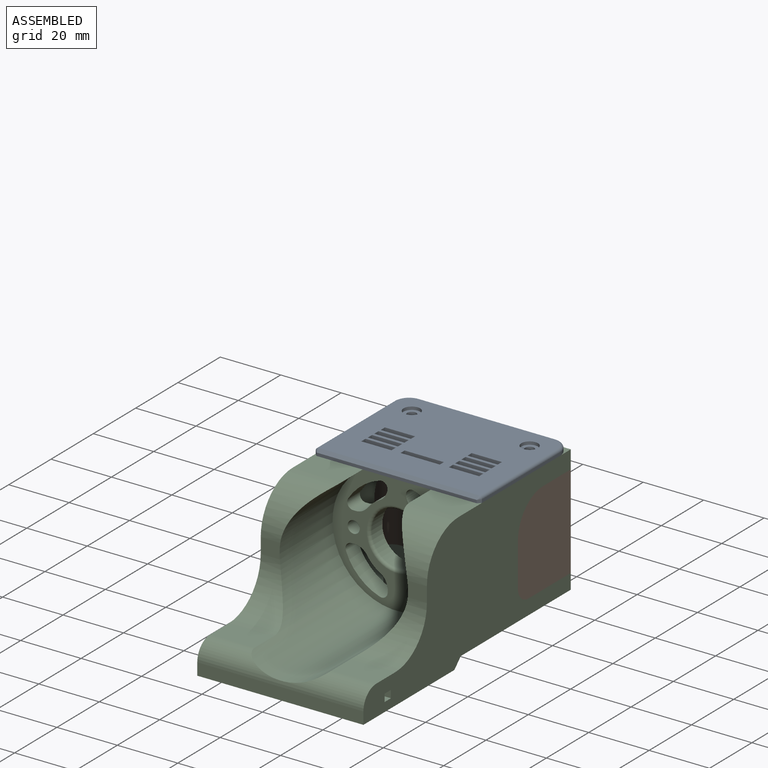
[diagram: assembled view]
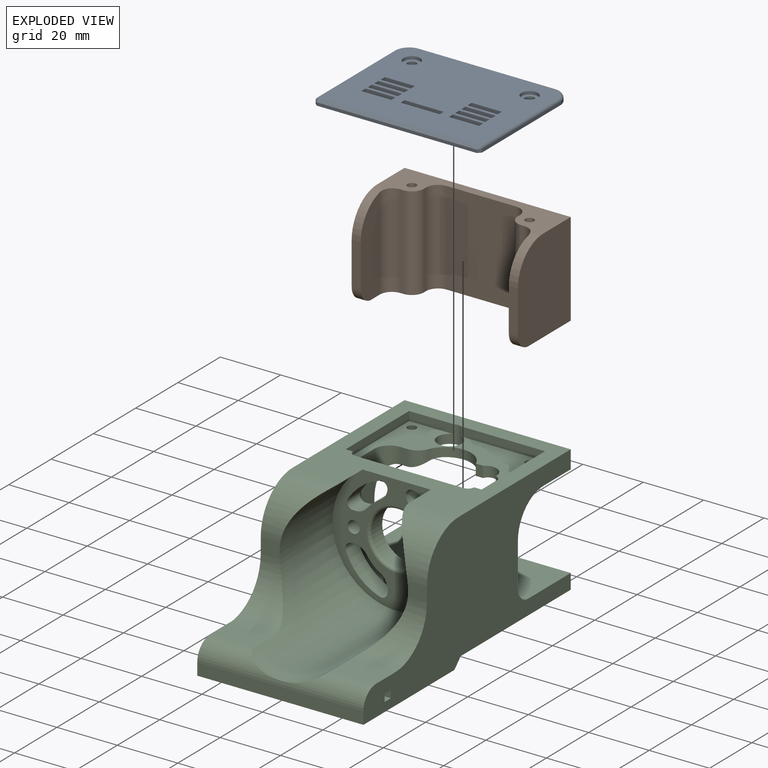
[diagram: exploded view]
GUIDED TOUR — MATED ASSEMBLY (Onshape document d21c6a823d4a268b9d513aab, AutoMate assembly d21c6a823d4a268b9d513aab_8b66b4463ccd40f2dc878932_d92774d3fa5fc7178e6c8692_default)

This assembly has 3 components, labeled P0..P2 below (a component is one placed occurrence of a part; the same part can appear more than once), held together by 2 mates. A mate is a constraint between two components; its type names the relative motion it leaves free:
  FASTENED — locks the two components together rigidly (no relative motion).
Axis/direction vectors are unit vectors and 'through' points are millimeter coordinates, both in the assembly's world frame.

MATES
  1. FASTENED "Fastened 2": P1 <-> P2, direction (0.000, 0.000, 1.000) through (-57.58, 35.75, 27.95) mm
  2. FASTENED "Fastened 1": P0 <-> P2, direction (0.000, 0.000, -1.000) through (-57.58, 35.75, 30.95) mm

ASSEMBLY ORDER
  1. P2 — the base component [order heuristic]
  2. P1 [order verified]
  3. P0 — core [order heuristic]
Order-tag legend:
  [order verified] — this step's position reverses a verified removal order: the component was checked to insert without passing through the ones already placed.
  [order heuristic] — the first 2 components form the assembly's core: parts whose collision-free extraction could not be verified, listed in mate-graph order.

Of the 3 components, 1 carries the full construction recipe — the FeatureScript program that regenerates the part's solid from scratch; the rest are supplied as boundary geometry only.
Each toured component is shown spotlighted twice — in the assembled view, then in the exploded view, where a leader line traces a displaced component back to its assembled socket (saturated green if recipe-attached, orange if geometry-only; every other component desaturated gray) — followed by its recipe or geometry summary and the mates that hold it.
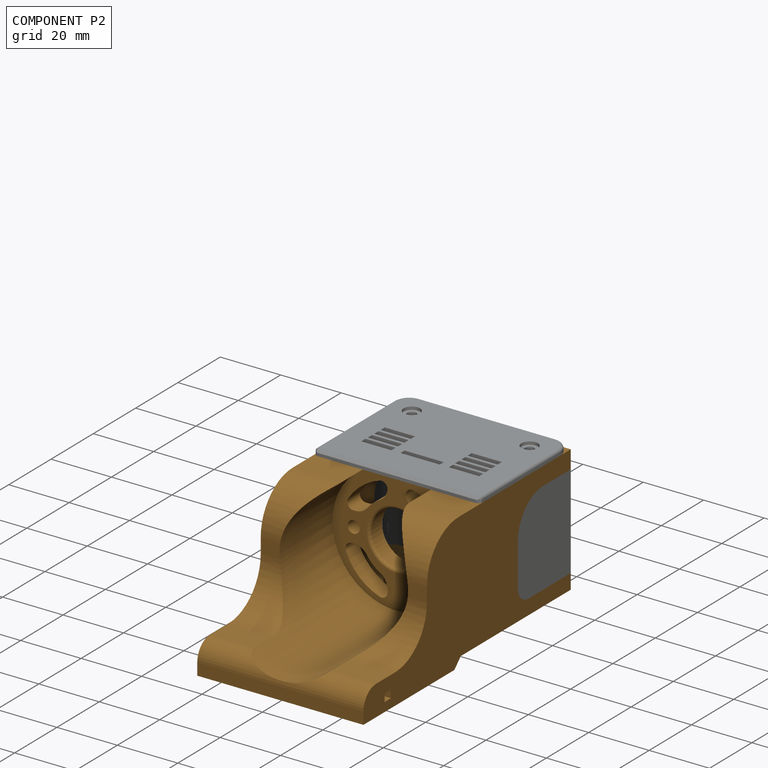
[diagram: component P2 — assembled]
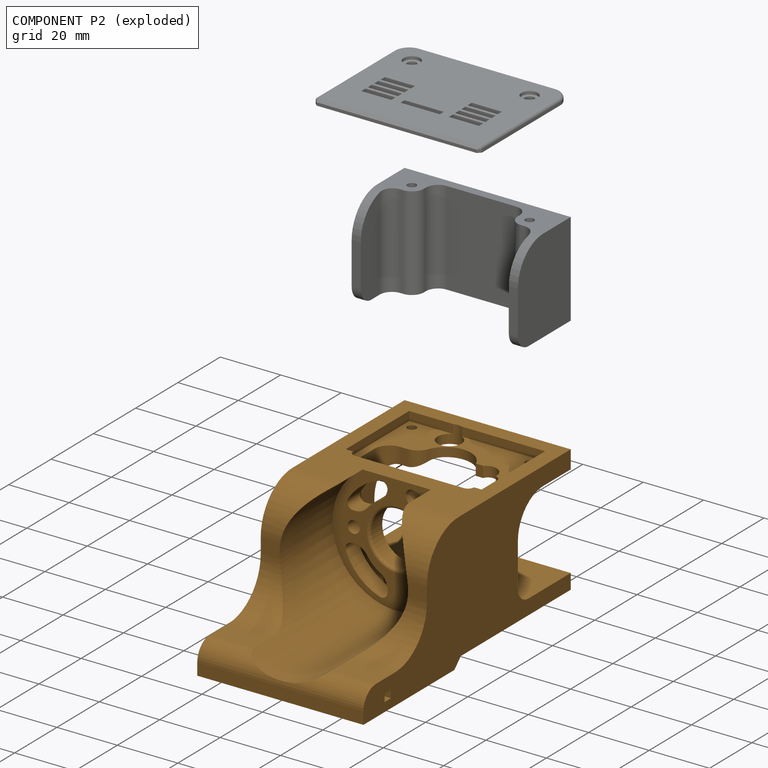
[diagram: component P2 — exploded]
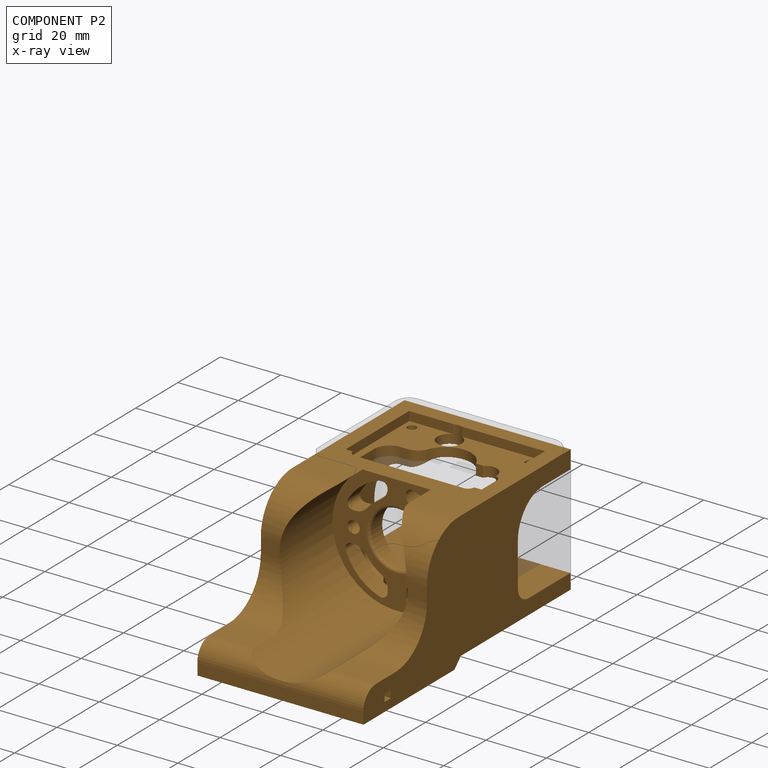
[diagram: component P2 — x-ray view]
COMPONENT P2 — geometry summary (no construction recipe available for this part):
  bounding box: 98.0 x 55.0 x 45.0 mm
  B-rep topology: 1 solid, 119 faces, 678 edges
  volume: 71060 mm^3 (29% of its bounding box)
Held by: FASTENED mate "Fastened 2" to P1; FASTENED mate "Fastened 1" to P0.
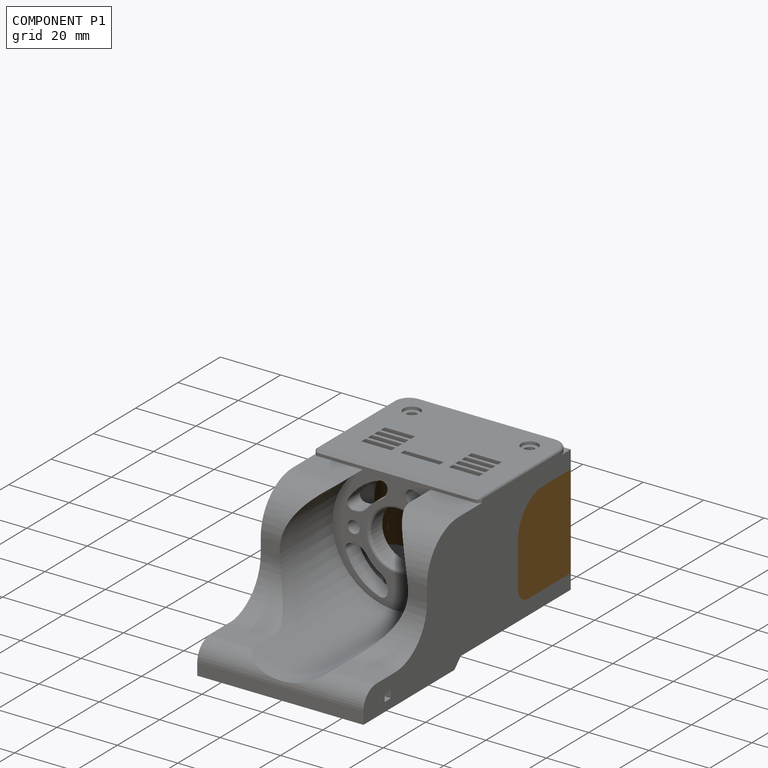
[diagram: component P1 — assembled]
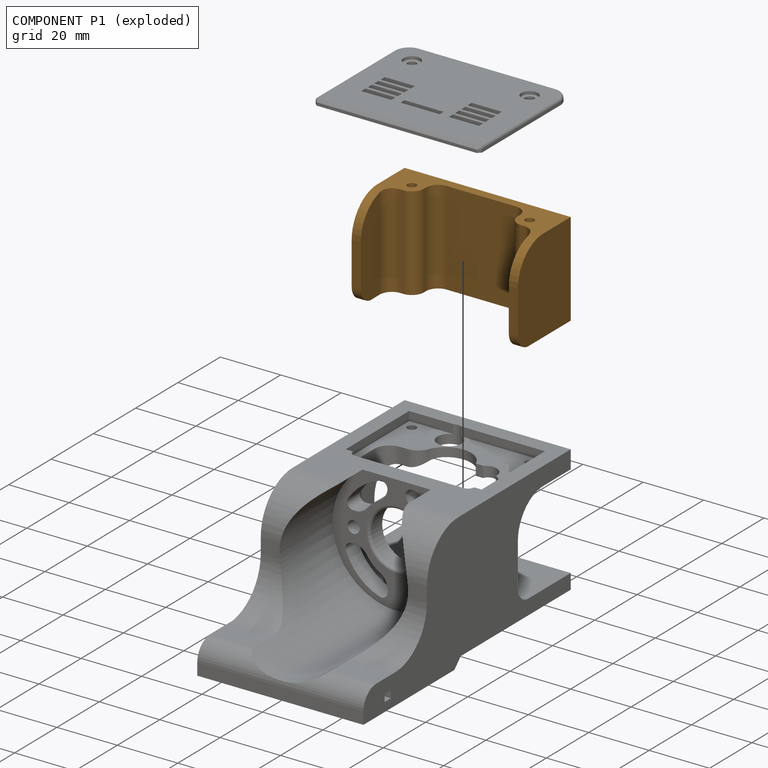
[diagram: component P1 — exploded]
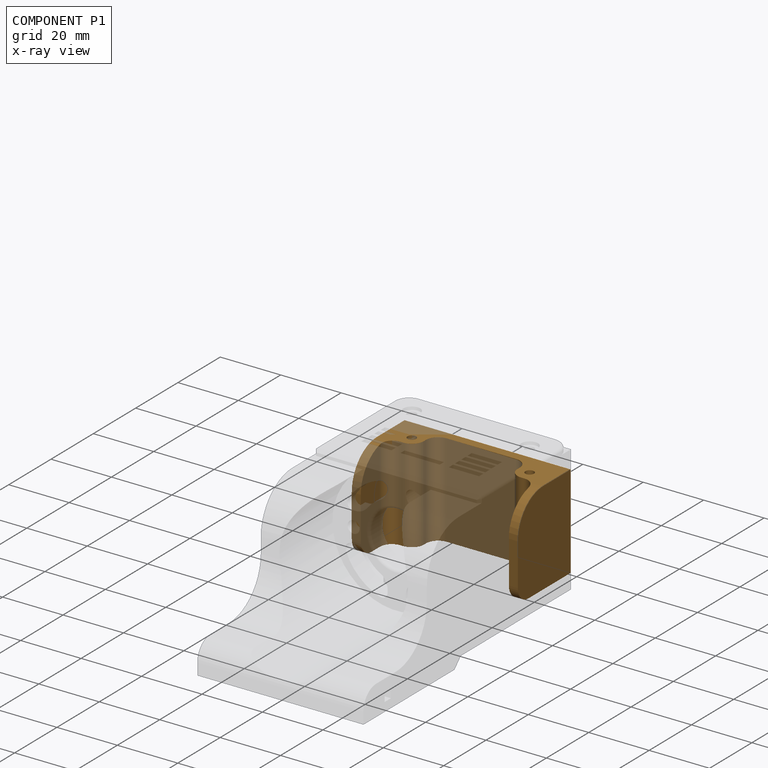
[diagram: component P1 — x-ray view]
COMPONENT P1 — geometry summary (no construction recipe available for this part):
  bounding box: 55.0 x 31.0 x 25.0 mm
  B-rep topology: 1 solid, 26 faces, 146 edges
  volume: 13829 mm^3 (32% of its bounding box)
  symmetry: mirror-symmetric across its x mid-plane
Held by: FASTENED mate "Fastened 2" to P2.
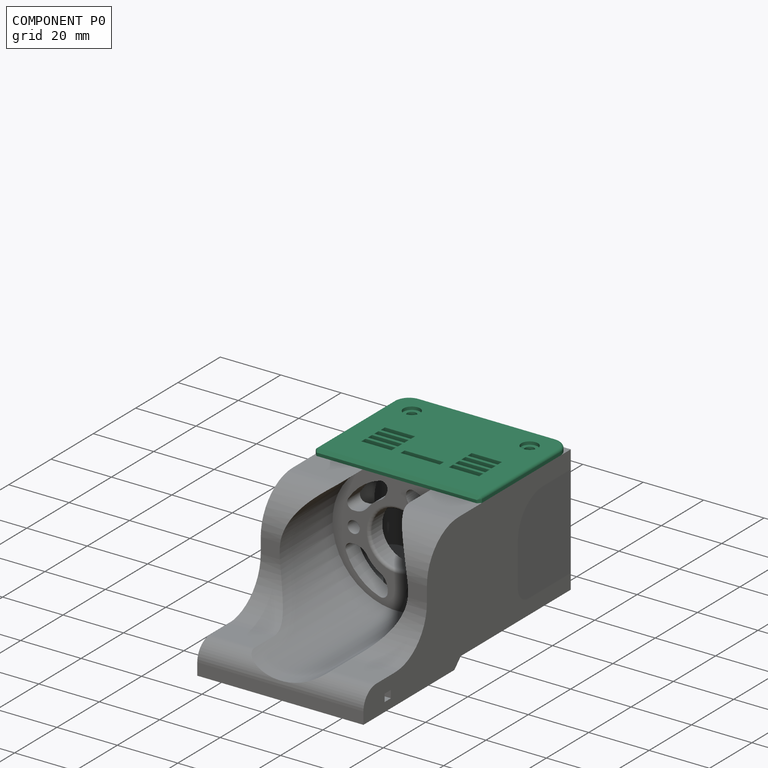
[diagram: component P0 — assembled]
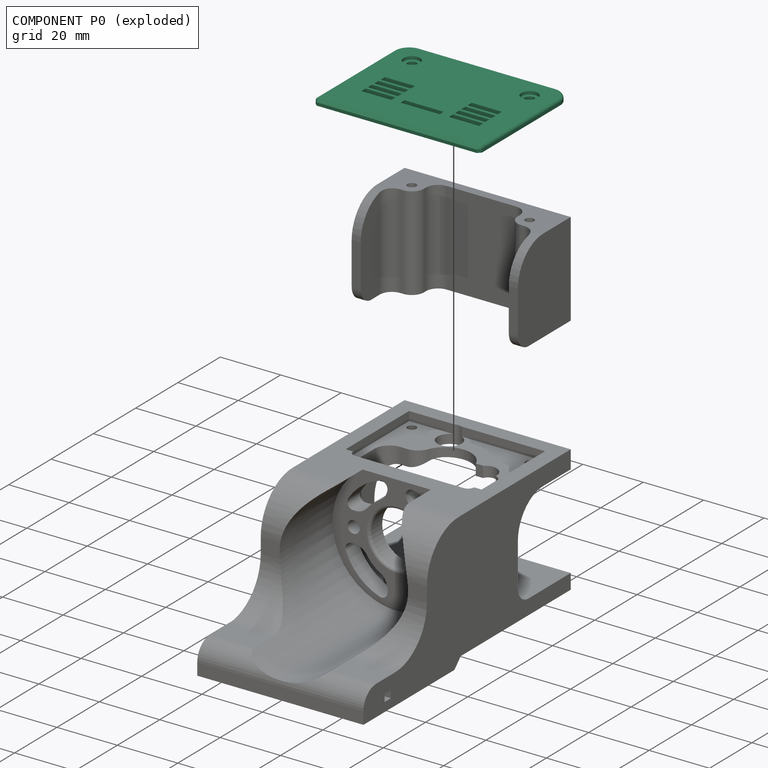
[diagram: component P0 — exploded]
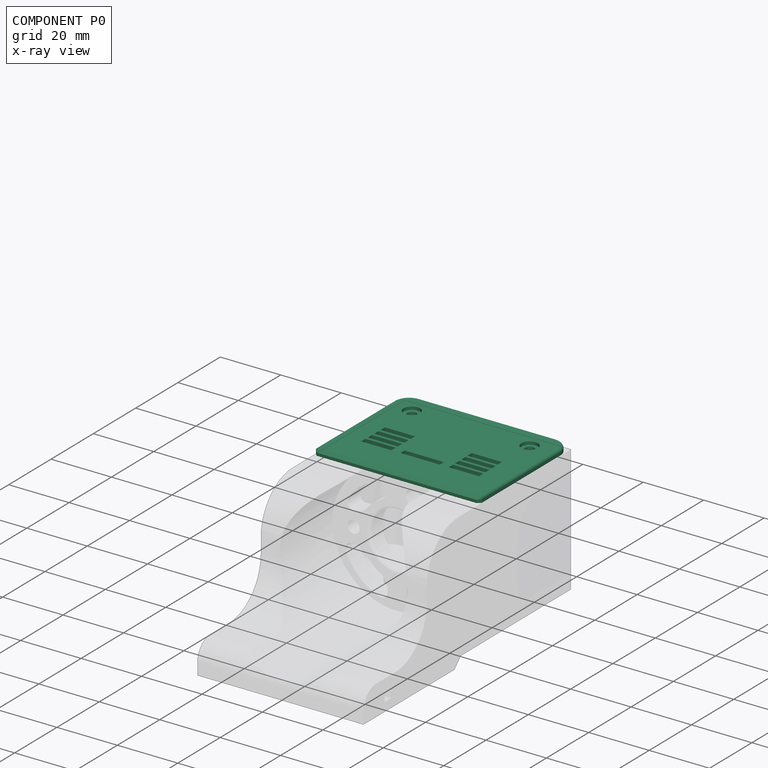
[diagram: component P0 — x-ray view]
COMPONENT P0 — recipe-attached (CADFS 00210788, mesh-verified: the recipe's output STEP matches this component's geometry to below the mesh-comparison resolution (tessellation chordal tolerance ~0.105 mm)).
Held by: FASTENED mate "Fastened 1" to P2.
Construction recipe (FeatureScript — the CAD program that rebuilds this solid; sketch coordinates are in the units given by the * unit suffixes, e.g. mm):

FeatureScript 1511;
import(path : "onshape/std/geometry.fs", version : "1511.0");
import(path : "onshape/std/common.fs", version : "1511.0");
const mm = millimeter;
const VERTEX = EntityType.VERTEX;
const EDGE = EntityType.EDGE;
const FACE = EntityType.FACE;
const BODY = EntityType.BODY;
function v(x, y){return vector(x, y);}
function OD(order){return orderDisambiguation(order);}
function OSD(set){return originalSetDisambiguation(set);}
function TD(topology){return topologyDisambiguation(topology);}
function TDD(query){return trueDependencyDisambiguation(query);}
function sQuery(a, b, c) {return sketchEntityQuery(a, b, c);}

annotation { "Feature Type Name" : "Feature", "Feature Type Description" : "" }
export const myFeature = defineFeature(function(context is Context, id is Id, definition is map)
    precondition{}
    {
        {
            var Q0;
            Q0=qCreatedBy(makeId("Top.planeOp"),FACE);
            var sketch = newSketch(context, id + "F0", { "sketchPlane" : qUnion([Q0])});
            skLineSegment(sketch, "E0.bottom", {"start": v(27.5, -20) * mm, "end": v(-27.5, -20) * mm});
            skLineSegment(sketch, "E0.top", {"start": v(27.5, 20) * mm, "end": v(-27.5, 20) * mm});
            skLineSegment(sketch, "E0.left", {"start": v(27.5, -20) * mm, "end": v(27.5, 20) * mm});
            skLineSegment(sketch, "E0.right", {"start": v(-27.5, -20) * mm, "end": v(-27.5, 20) * mm});
            skPoint(sketch, "E0.middle", {"position": v(0, 0) * mm});
            skSolve(sketch);
        }
        {
            var Q0;
            Q0 = qSketchRegion(id + "F0", true);
            extrude(context, id + "F1", {"entities" : qUnion([Q0]), "oppositeDirection" : true, "depth" : 2 * mm});
        }
        {
            var Q0;
            Q0=makeQuery(id+"F1.opExtrude","CAP_FACE",FACE,{"disambiguationData":[OSD([sQuery(id+"F0.wireOp",EDGE,"E0.bottom"),sQuery(id+"F0.wireOp",EDGE,"E0.top"),sQuery(id+"F0.wireOp",EDGE,"E0.left"),sQuery(id+"F0.wireOp",EDGE,"E0.right")])],"isStart":true});
            var sketch = newSketch(context, id + "F2", { "sketchPlane" : qUnion([Q0])});
            skLineSegment(sketch, "E1.bottom", {"start": v(-22.5, 15) * mm, "end": v(22.5, 15) * mm});
            skLineSegment(sketch, "E1.top", {"start": v(-22.5, -15) * mm, "end": v(22.5, -15) * mm});
            skLineSegment(sketch, "E1.left", {"start": v(-22.5, 15) * mm, "end": v(-22.5, -15) * mm});
            skLineSegment(sketch, "E1.right", {"start": v(22.5, 15) * mm, "end": v(22.5, -15) * mm});
            skSolve(sketch);
        }
        {
            var Q0;
            Q0 = qSketchRegion(id + "F2", true);
            extrude(context, id + "F3", {"entities" : qUnion([Q0]), "operationType" : NewBodyOperationType.ADD, "depth" : 3 * mm});
        }
        {
            var Q0;
            Q0=makeQuery(id+"F1.opExtrude","CAP_FACE",FACE,{"disambiguationData":[OSD([sQuery(id+"F0.wireOp",EDGE,"E0.bottom"),sQuery(id+"F0.wireOp",EDGE,"E0.top"),sQuery(id+"F0.wireOp",EDGE,"E0.left"),sQuery(id+"F0.wireOp",EDGE,"E0.right")])],"isStart":false});
            var sketch = newSketch(context, id + "F4", { "sketchPlane" : qUnion([Q0])});
            skCircle(sketch, "E2", {"center": v(19.5, 12) * mm, "radius": 1.5 * mm});
            skCircle(sketch, "E3", {"center": v(-19.5, 12) * mm, "radius": 1.5 * mm});
            skSolve(sketch);
        }
        {
            var Q0;
            Q0 = qSketchRegion(id + "F4", true);
            extrude(context, id + "F5", {"entities" : qUnion([Q0]), "operationType" : NewBodyOperationType.REMOVE, "oppositeDirection" : true, "depth" : 25 * mm});
        }
        {
            var Q0;
            Q0=makeQuery(id+"F3.opExtrude","CAP_FACE",FACE,{"disambiguationData":[OSD([sQuery(id+"F2.wireOp",EDGE,"E1.bottom"),sQuery(id+"F2.wireOp",EDGE,"E1.top"),sQuery(id+"F2.wireOp",EDGE,"E1.left"),sQuery(id+"F2.wireOp",EDGE,"E1.right")])],"isStart":false});
            var sketch = newSketch(context, id + "F6", { "sketchPlane" : qUnion([Q0])});
            skCircle(sketch, "E4", {"center": v(0, 0) * mm, "radius": 8.45 * mm});
            skSolve(sketch);
        }
        {
            var Q0;
            Q0=makeQuery(id+"F6.imprint","IMPRINT",FACE,{"disambiguationData":[TD([[makeQuery(id+"F6.imprint","IMPRINT",EDGE,{"derivedFrom":sQuery(id+"F6.wireOp",EDGE,"E4")}),1.0]])]});
            extrude(context, id + "F7", {"entities" : qUnion([Q0]), "operationType" : NewBodyOperationType.ADD, "depth" : 2 * mm});
        }
        {
            var Q0;
            Q0=makeQuery(id+"F7.opExtrude","CAP_FACE",FACE,{"disambiguationData":[OSD([sQuery(id+"F6.wireOp",EDGE,"E4")])],"isStart":false});
            var sketch = newSketch(context, id + "F8", { "sketchPlane" : qUnion([Q0])});
            skCircle(sketch, "E5", {"center": v(0, 0) * mm, "radius": 3 * mm});
            skSolve(sketch);
        }
        {
            var Q0;
            Q0=makeQuery(id+"F8.imprint","IMPRINT",FACE,{"disambiguationData":[TD([[makeQuery(id+"F8.imprint","IMPRINT",EDGE,{"derivedFrom":sQuery(id+"F8.wireOp",EDGE,"E5")}),1.0]])]});
            extrude(context, id + "F9", {"entities" : qUnion([Q0]), "operationType" : NewBodyOperationType.REMOVE, "oppositeDirection" : true, "depth" : 2 * mm});
        }
        {
            var Q0;
            Q0=makeQuery(id+"F9.boolean.opBoolean","COPY",FACE,{"derivedFrom":makeQuery(id+"F9.opExtrude","CAP_FACE",FACE,{"disambiguationData":[OSD([sQuery(id+"F8.wireOp",EDGE,"E5")])],"isStart":false})});
            var sketch = newSketch(context, id + "F10", { "sketchPlane" : qUnion([Q0])});
            skCircle(sketch, "E6", {"center": v(0, 0) * mm, "radius": 1.5 * mm});
            skSolve(sketch);
        }
        {
            var Q0;
            Q0 = qSketchRegion(id + "F10", true);
            extrude(context, id + "F11", {"entities" : qUnion([Q0]), "operationType" : NewBodyOperationType.REMOVE, "oppositeDirection" : true, "depth" : 1 * mm});
        }
        {
            var Q0;
            Q0=makeQuery(id+"F1.opExtrude","SWEPT_EDGE",EDGE,{"disambiguationData":[OSD([sQuery(id+"F0.wireOp",EDGE,"E0.bottom"),sQuery(id+"F0.wireOp",EDGE,"E0.right")])]});
            var Q1;
            Q1=makeQuery(id+"F1.opExtrude","SWEPT_EDGE",EDGE,{"disambiguationData":[OSD([sQuery(id+"F0.wireOp",EDGE,"E0.bottom"),sQuery(id+"F0.wireOp",EDGE,"E0.left")])]});
            fillet(context, id + "F12", {"entities" : qUnion([Q0, Q1]), "radius" : 5 * mm, "tangentPropagation" : true, "allowEdgeOverflow" : false});
        }
        {
            var Q0;
            Q0=makeQuery(id+"F3.opExtrude","SWEPT_EDGE",EDGE,{"disambiguationData":[OSD([sQuery(id+"F2.wireOp",EDGE,"E1.top"),sQuery(id+"F2.wireOp",EDGE,"E1.right")])]});
            var Q1;
            Q1=makeQuery(id+"F3.opExtrude","SWEPT_EDGE",EDGE,{"disambiguationData":[OSD([sQuery(id+"F2.wireOp",EDGE,"E1.top"),sQuery(id+"F2.wireOp",EDGE,"E1.left")])]});
            var Q2;
            Q2=makeQuery(id+"F3.opExtrude","SWEPT_EDGE",EDGE,{"disambiguationData":[OSD([sQuery(id+"F2.wireOp",EDGE,"E1.bottom"),sQuery(id+"F2.wireOp",EDGE,"E1.left")])]});
            var Q3;
            Q3=makeQuery(id+"F3.opExtrude","SWEPT_EDGE",EDGE,{"disambiguationData":[OSD([sQuery(id+"F2.wireOp",EDGE,"E1.bottom"),sQuery(id+"F2.wireOp",EDGE,"E1.right")])]});
            var Q4;
            Q4=makeQuery(id+"F3.opExtrude","CAP_EDGE",EDGE,{"disambiguationData":[OSD([sQuery(id+"F2.wireOp",EDGE,"E1.right")])],"isStart":false});
            var Q5;
            Q5=makeQuery(id+"F3.opExtrude","CAP_EDGE",EDGE,{"disambiguationData":[OSD([sQuery(id+"F2.wireOp",EDGE,"E1.bottom")])],"isStart":false});
            var Q6;
            Q6=makeQuery(id+"F3.opExtrude","CAP_EDGE",EDGE,{"disambiguationData":[OSD([sQuery(id+"F2.wireOp",EDGE,"E1.left")])],"isStart":false});
            var Q7;
            Q7=makeQuery(id+"F3.opExtrude","CAP_EDGE",EDGE,{"disambiguationData":[OSD([sQuery(id+"F2.wireOp",EDGE,"E1.top")])],"isStart":false});
            fillet(context, id + "F13", {"entities" : qUnion([Q0, Q1, Q2, Q3, Q4, Q5, Q6, Q7]), "radius" : 1 * mm, "tangentPropagation" : true, "allowEdgeOverflow" : false});
        }
        {
            var Q0;
            Q0=makeQuery(id+"F7.opExtrude","CAP_EDGE",EDGE,{"disambiguationData":[OSD([sQuery(id+"F6.wireOp",EDGE,"E4")])],"isStart":false});
            var Q1;
            Q1=makeQuery(id+"F1.opExtrude","CAP_EDGE",EDGE,{"disambiguationData":[OSD([sQuery(id+"F0.wireOp",EDGE,"E0.bottom")])],"isStart":false});
            fillet(context, id + "F14", {"entities" : qUnion([Q0, Q1]), "radius" : 1 * mm, "tangentPropagation" : true, "allowEdgeOverflow" : false});
        }
        {
            var Q0;
            Q0=makeQuery(id+"F3.opExtrude","CAP_FACE",FACE,{"disambiguationData":[OSD([sQuery(id+"F2.wireOp",EDGE,"E1.bottom"),sQuery(id+"F2.wireOp",EDGE,"E1.top"),sQuery(id+"F2.wireOp",EDGE,"E1.left"),sQuery(id+"F2.wireOp",EDGE,"E1.right")])],"isStart":false});
            var sketch = newSketch(context, id + "F15", { "sketchPlane" : qUnion([Q0])});
            skLineSegment(sketch, "E7.1.0.0", {"start": v(19.5, 11.9) * mm, "end": v(19.5, 9.9) * mm});
            skLineSegment(sketch, "E7.1.0.1", {"start": v(9.5, 11.9) * mm, "end": v(9.5, 9.9) * mm});
            skLineSegment(sketch, "E7.1.0.2", {"start": v(9.5, 9.9) * mm, "end": v(19.5, 9.9) * mm});
            skLineSegment(sketch, "E7.1.0.3", {"start": v(9.5, 11.9) * mm, "end": v(19.5, 11.9) * mm});
            skLineSegment(sketch, "E7.1.1.0", {"start": v(19.46, 8.9) * mm, "end": v(19.46, 6.9) * mm});
            skLineSegment(sketch, "E7.1.1.1", {"start": v(9.46, 8.9) * mm, "end": v(9.46, 6.9) * mm});
            skLineSegment(sketch, "E7.1.1.2", {"start": v(9.46, 6.9) * mm, "end": v(19.46, 6.9) * mm});
            skLineSegment(sketch, "E7.1.1.3", {"start": v(9.46, 8.9) * mm, "end": v(19.46, 8.9) * mm});
            skLineSegment(sketch, "E7.1.2.0", {"start": v(19.41, 5.9) * mm, "end": v(19.41, 3.9) * mm});
            skLineSegment(sketch, "E7.1.2.1", {"start": v(9.41, 5.9) * mm, "end": v(9.41, 3.9) * mm});
            skLineSegment(sketch, "E7.1.2.2", {"start": v(9.41, 3.9) * mm, "end": v(19.41, 3.9) * mm});
            skLineSegment(sketch, "E7.1.2.3", {"start": v(9.41, 5.9) * mm, "end": v(19.41, 5.9) * mm});
            skLineSegment(sketch, "E7.1.3.0", {"start": v(19.37, 2.9) * mm, "end": v(19.37, 0.9) * mm});
            skLineSegment(sketch, "E7.1.3.1", {"start": v(9.37, 2.9) * mm, "end": v(9.37, 0.9) * mm});
            skLineSegment(sketch, "E7.1.3.2", {"start": v(9.37, 0.9) * mm, "end": v(19.37, 0.9) * mm});
            skLineSegment(sketch, "E7.1.3.3", {"start": v(9.37, 2.9) * mm, "end": v(19.37, 2.9) * mm});
            skLineSegment(sketch, "E7.direction1", {"start": v(-19.5, 10) * mm, "end": v(9.5, 9.9) * mm, "construction": true});
            skLineSegment(sketch, "E8.MirrorCS", {"start": v(-9.5, 9.9) * mm, "end": v(-19.5, 9.9) * mm});
            skLineSegment(sketch, "E9.MirrorCS", {"start": v(-9.37, 2.9) * mm, "end": v(-9.37, 0.9) * mm});
            skLineSegment(sketch, "E10.MirrorCS", {"start": v(-19.46, 8.9) * mm, "end": v(-19.46, 6.9) * mm});
            skLineSegment(sketch, "E11.MirrorCS", {"start": v(-9.37, 2.9) * mm, "end": v(-19.37, 2.9) * mm});
            skLineSegment(sketch, "E12.MirrorCS", {"start": v(-9.46, 8.9) * mm, "end": v(-19.46, 8.9) * mm});
            skLineSegment(sketch, "E13.MirrorCS", {"start": v(-9.41, 3.9) * mm, "end": v(-19.41, 3.9) * mm});
            skLineSegment(sketch, "E14.MirrorCS", {"start": v(-9.41, 5.9) * mm, "end": v(-9.41, 3.9) * mm});
            skLineSegment(sketch, "E15.MirrorCS", {"start": v(-9.5, 11.9) * mm, "end": v(-9.5, 9.9) * mm});
            skLineSegment(sketch, "E16.MirrorCS", {"start": v(-9.46, 6.9) * mm, "end": v(-19.46, 6.9) * mm});
            skLineSegment(sketch, "E17.MirrorCS", {"start": v(-9.41, 5.9) * mm, "end": v(-19.41, 5.9) * mm});
            skLineSegment(sketch, "E18.MirrorCS", {"start": v(-19.5, 11.9) * mm, "end": v(-19.5, 9.9) * mm});
            skLineSegment(sketch, "E19.MirrorCS", {"start": v(-9.37, 0.9) * mm, "end": v(-19.37, 0.9) * mm});
            skLineSegment(sketch, "E20.MirrorCS", {"start": v(-19.37, 2.9) * mm, "end": v(-19.37, 0.9) * mm});
            skLineSegment(sketch, "E21.MirrorCS", {"start": v(-9.5, 11.9) * mm, "end": v(-19.5, 11.9) * mm});
            skLineSegment(sketch, "E22.MirrorCS", {"start": v(-19.41, 5.9) * mm, "end": v(-19.41, 3.9) * mm});
            skLineSegment(sketch, "E23.MirrorCS", {"start": v(-9.46, 8.9) * mm, "end": v(-9.46, 6.9) * mm});
            skLineSegment(sketch, "E24.bottom", {"start": v(-6.5, 9.96) * mm, "end": v(6.5, 9.96) * mm});
            skLineSegment(sketch, "E24.top", {"start": v(-6.5, 11.9) * mm, "end": v(6.5, 11.9) * mm});
            skLineSegment(sketch, "E24.left", {"start": v(-6.5, 9.96) * mm, "end": v(-6.5, 11.9) * mm});
            skLineSegment(sketch, "E24.right", {"start": v(6.5, 9.96) * mm, "end": v(6.5, 11.9) * mm});
            skSolve(sketch);
        }
        {
            var Q0;
            Q0 = qSketchRegion(id + "F15", true);
            extrude(context, id + "F16", {"entities" : qUnion([Q0]), "operationType" : NewBodyOperationType.REMOVE, "endBound" : BoundingType.THROUGH_ALL, "oppositeDirection" : true, "depth" : 25 * mm});
        }
        {
            var Q0;
            Q0=makeQuery(id+"F1.opExtrude","SWEPT_FACE",FACE,{"disambiguationData":[OSD([sQuery(id+"F0.wireOp",EDGE,"E0.top")])]});
            extrude(context, id + "F17", {"entities" : qUnion([Q0]), "operationType" : NewBodyOperationType.ADD, "depth" : 3 * mm});
        }
        {
            var Q0;
            {var subQ0=sQuery(id+"F0.wireOp",EDGE,"E0.top");Q0=makeQuery(id+"F17.opExtrude","CAP_EDGE",EDGE,{"disambiguationData":[OSD([subQ0]),TDD([makeQuery(id+"F1.opExtrude","CAP_EDGE",EDGE,{"disambiguationData":[OSD([subQ0])],"isStart":false})])],"isStart":false});}
            chamfer(context, id + "F18", {"entities" : qUnion([Q0]), "width" : 1 * mm, "tangentPropagation" : true});
        }
        {
            var Q0;
            {var subQ0=sQuery(id+"F0.wireOp",EDGE,"E0.top");Q0=makeQuery(id+"F17.boolean.opBoolean","MERGE",FACE,{"derivedFrom":[makeQuery(id+"F1.opExtrude","CAP_FACE",FACE,{"disambiguationData":[OSD([sQuery(id+"F0.wireOp",EDGE,"E0.bottom"),subQ0,sQuery(id+"F0.wireOp",EDGE,"E0.left"),sQuery(id+"F0.wireOp",EDGE,"E0.right")])],"isStart":false}),makeQuery(id+"F17.opExtrude","SWEPT_FACE",FACE,{"disambiguationData":[OSD([subQ0]),TDD([makeQuery(id+"F1.opExtrude","CAP_EDGE",EDGE,{"disambiguationData":[OSD([subQ0])],"isStart":false})])]})]});}
            var sketch = newSketch(context, id + "F19", { "sketchPlane" : qUnion([Q0])});
            skCircle(sketch, "E25", {"center": v(-19.5, 12) * mm, "radius": 2.75 * mm});
            skCircle(sketch, "E26", {"center": v(19.5, 12) * mm, "radius": 2.75 * mm});
            skSolve(sketch);
        }
        {
            var Q0;
            Q0 = qSketchRegion(id + "F19", true);
            extrude(context, id + "F20", {"entities" : qUnion([Q0]), "operationType" : NewBodyOperationType.REMOVE, "oppositeDirection" : true, "depth" : 1 * mm});
        }
    });
PROVENANCE & LICENSES
Assembly (occurrences, transforms, mates, per-part STEP geometry): AutoMate dataset, Zenodo record 7776208, CC0.
Construction recipes: CADFS (HuggingFace VladPyatov/CADFS, CC-BY-4.0, layered over the ABC dataset), FeatureScript reconstruction programs keyed by ABC model id.
Join: ABC meta listings map ABC model id -> Onshape documentId; within a shared document, parts are matched by geometric signature (bounding-box dims + volume at 0.1% relative tolerance, exact B-rep face/solid counts).
Verification: 1 of this assembly's 3 components carries a recipe attachment, and every attachment is mesh-verified: the CADFS STEP and the AutoMate member STEP were compared as meshes in their shared local frame (symmetric sampled-point-to-mesh distance); worst across the 1 attachment: below the mesh-comparison resolution (tessellation chordal tolerance ~0.105 mm) on a 70 mm part.
Renders: orthographic iso camera (az 35 / el 25); the floor grid conveys scale (grid pitch printed in each image; no ruler). In the exploded view each component is displaced by its stored offset vector: the offsets alone carry the explosion direction (mate normal/axis signs are not orientation cues and do not encode it), and separation distances are assigned per mate-chain, not proportionally to assembly-order depth.
